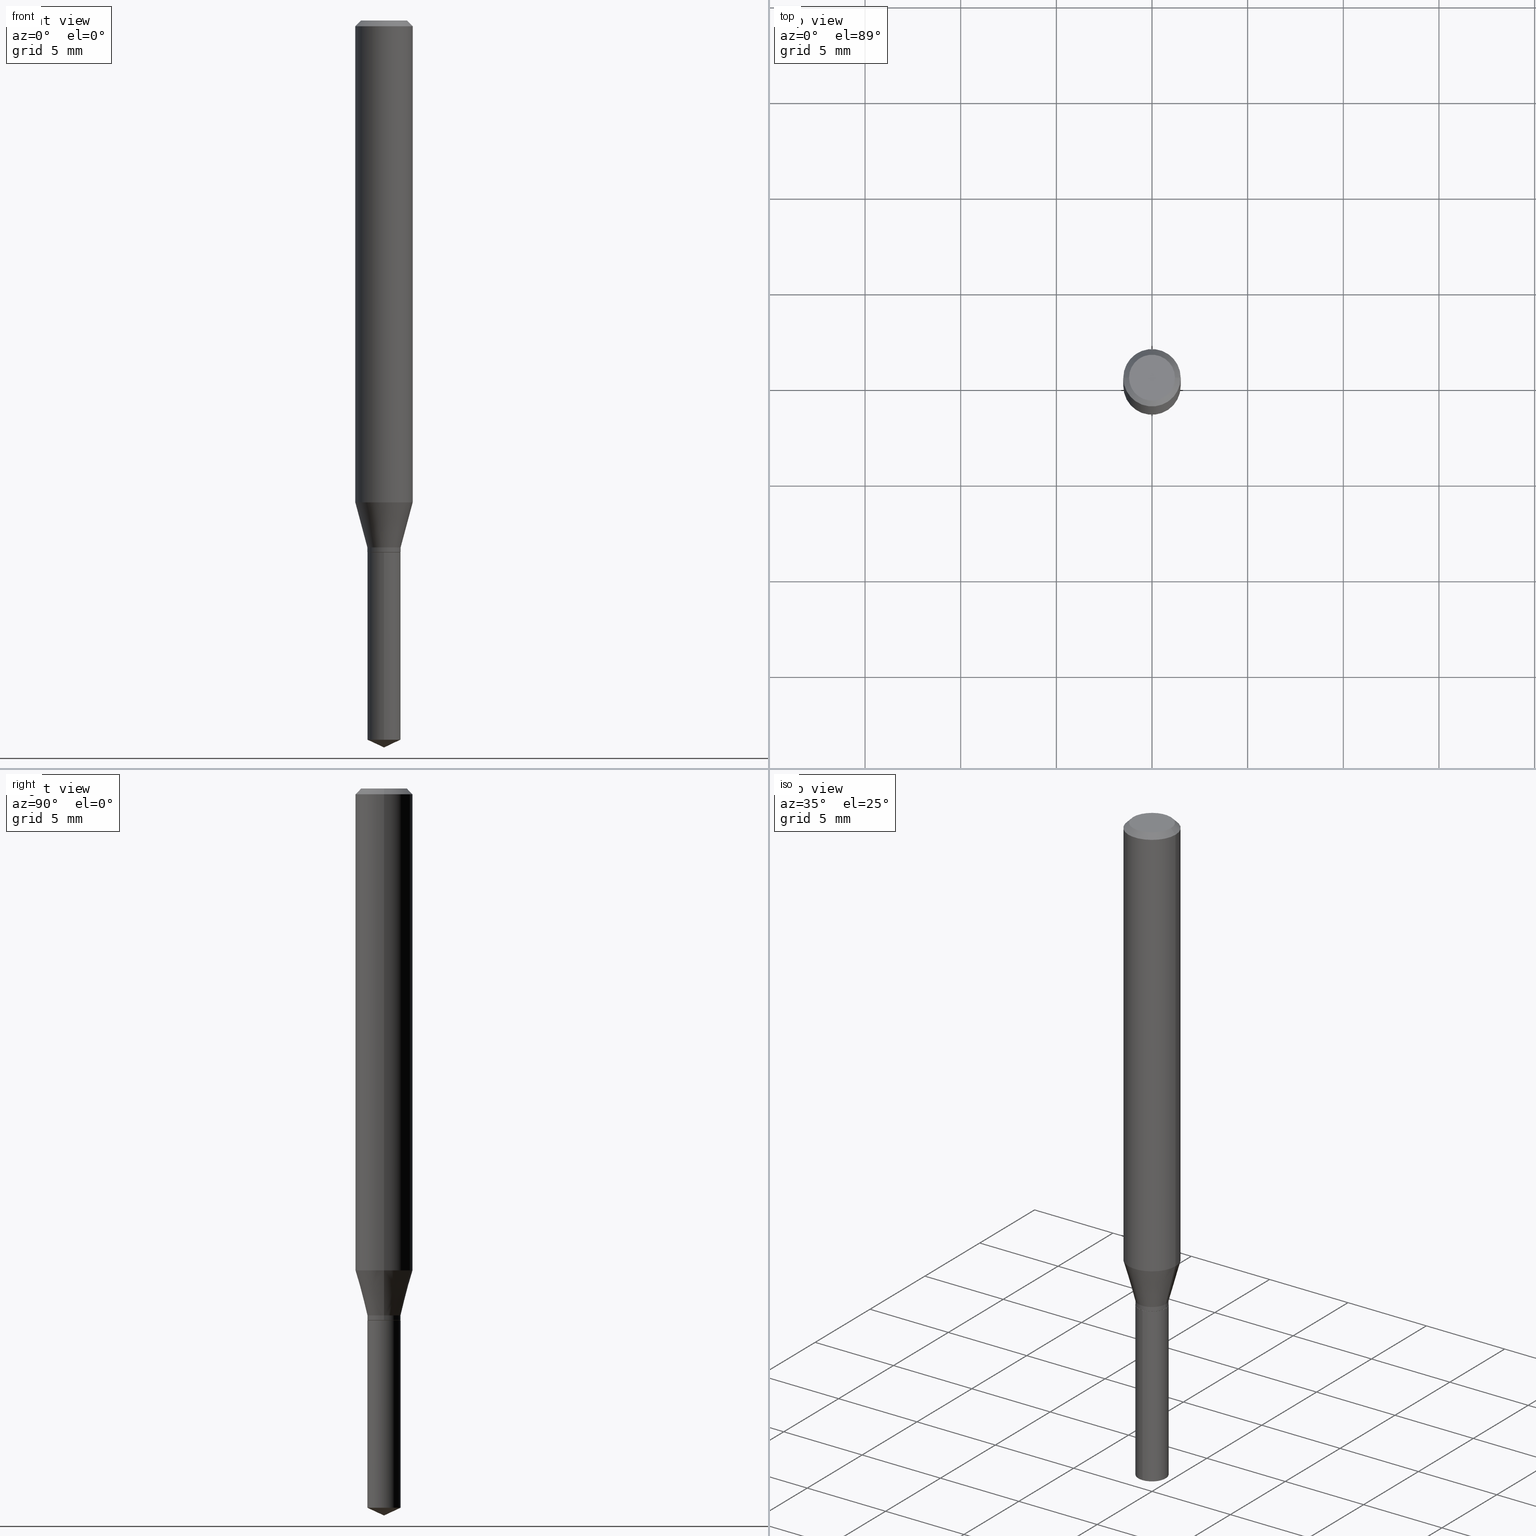
[diagram: canonical four-view strip — front | top / right | iso, engineering-drawing reading convention]
A machine part, canonical four-view strip (front | top / right | iso — engineering-drawing reading convention). The complete STEP part file that produces these views, byte-faithful:
ISO-10303-21;
HEADER;
FILE_DESCRIPTION (( 'STEP AP203' ),
    '1' );
FILE_NAME ('07913.STEP',
    '2024-04-24T06:02:47',
    ( '' ),
    ( '' ),
    'SwSTEP 2.0',
    'SolidWorks 2023',
    '' );
FILE_SCHEMA (( 'CONFIG_CONTROL_DESIGN' ));
ENDSEC;

DATA;
#1 =( CONVERSION_BASED_UNIT ( 'INCH', #271 ) LENGTH_UNIT ( ) NAMED_UNIT ( #392 ) );
#2 = EDGE_CURVE ( 'NONE', #400, #277, #22, .T. ) ;
#3 = LOCAL_TIME ( 2, 2, 47.00000000000000000, #192 ) ;
#4 = ORIENTED_EDGE ( 'NONE', *, *, #457, .T. ) ;
#5 = DIRECTION ( 'NONE',  ( 2.445468806185136597E-29, -3.491481338843145583E-15, -1.000000000000000000 ) ) ;
#6 = CARTESIAN_POINT ( 'NONE',  ( 2.676565608369631794E-29, -3.821426325363822773E-15, -1.094499999999999806 ) ) ;
#7 = CARTESIAN_POINT ( 'NONE',  ( -2.391664717107278944E-16, -0.03425000000000382600, -1.094499999999999806 ) ) ;
#8 = ORIENTED_EDGE ( 'NONE', *, *, #316, .T. ) ;
#9 = ORIENTED_EDGE ( 'NONE', *, *, #140, .T. ) ;
#10 = VECTOR ( 'NONE', #132, 39.37007874015748143 ) ;
#11 = ORIENTED_EDGE ( 'NONE', *, *, #416, .T. ) ;
#12 = FACE_OUTER_BOUND ( 'NONE', #435, .T. ) ;
#13 = ORIENTED_EDGE ( 'NONE', *, *, #153, .F. ) ;
#14 = EDGE_CURVE ( 'NONE', #263, #112, #191, .T. ) ;
#15 = DIRECTION ( 'NONE',  ( 1.000000000000000000, -6.982962677686266711E-15, 4.876176775795935793E-29 ) ) ;
#16 = AXIS2_PLACEMENT_3D ( 'NONE', #234, #5, #322 ) ;
#17 = DIRECTION ( 'NONE',  ( 0.7071067811864267805, -2.468850131080992517E-15, 0.7071067811866682540 ) ) ;
#18 = PERSON ( 'UNSPECIFIED', 'UNSPECIFIED', 'UNSPECIFIED', ('UNSPECIFIED'), ('UNSPECIFIED'), ('UNSPECIFIED') ) ;
#19 = CARTESIAN_POINT ( 'NONE',  ( 2.675342873966538993E-29, -3.819680584694400481E-15, -1.093999999999999861 ) ) ;
#20 = DIRECTION ( 'NONE',  ( -6.982962677686265922E-15, -1.000000000000000000, 3.988099260823741568E-15 ) ) ;
#21 = CARTESIAN_POINT ( 'NONE',  ( -0.03375000000000000222, -3.578968924870678138E-15, -1.094500000000000028 ) ) ;
#22 = CIRCLE ( 'NONE', #144, 0.05904999999999999832 ) ;
#23 = CARTESIAN_POINT ( 'NONE',  ( 3.619609750548734277E-29, -5.167841874605765612E-15, -1.480128962708191276 ) ) ;
#24 = ORIENTED_EDGE ( 'NONE', *, *, #314, .F. ) ;
#25 = FACE_OUTER_BOUND ( 'NONE', #319, .T. ) ;
#26 = DATE_AND_TIME ( #476, #273 ) ;
#27 = DIRECTION ( 'NONE',  ( 2.438088387897960049E-29, -3.491481338843145188E-15, -1.000000000000000000 ) ) ;
#28 = CONICAL_SURFACE ( 'NONE', #172, 0.03425000000000000266, 0.2617993877991497964 ) ;
#29 = APPROVAL_PERSON_ORGANIZATION ( #293, #308, #336 ) ;
#30 = ORIENTED_EDGE ( 'NONE', *, *, #170, .T. ) ;
#31 = ORGANIZATION ( 'UNSPECIFIED', 'UNSPECIFIED', '' ) ;
#32 = FACE_OUTER_BOUND ( 'NONE', #155, .T. ) ;
#33 = CYLINDRICAL_SURFACE ( 'NONE', #422, 0.03425000000000000266 ) ;
#34 = EDGE_LOOP ( 'NONE', ( #4, #306, #50, #196 ) ) ;
#35 = ADVANCED_FACE ( 'NONE', ( #12 ), #463, .T. ) ;
#36 = LINE ( 'NONE', #7, #339 ) ;
#37 = EDGE_LOOP ( 'NONE', ( #387, #283, #163, #473 ) ) ;
#38 = DIRECTION ( 'NONE',  ( -2.445468806185136597E-29, 3.491481338843145583E-15, 1.000000000000000000 ) ) ;
#39 = ORIENTED_EDGE ( 'NONE', *, *, #153, .T. ) ;
#40 = PERSON_AND_ORGANIZATION ( #18, #31 ) ;
#41 = AXIS2_PLACEMENT_3D ( 'NONE', #97, #475, #411 ) ;
#42 = ORIENTED_EDGE ( 'NONE', *, *, #334, .F. ) ;
#43 = APPROVAL_PERSON_ORGANIZATION ( #67, #231, #379 ) ;
#44 = CC_DESIGN_SECURITY_CLASSIFICATION ( #137, ( #310 ) ) ;
#45 = DIRECTION ( 'NONE',  ( -6.982962677686265922E-15, -1.000000000000000000, 3.988099260823741568E-15 ) ) ;
#46 = ORIENTED_EDGE ( 'NONE', *, *, #330, .T. ) ;
#47 = APPROVAL ( #312, 'UNSPECIFIED' ) ;
#48 = ORIENTED_EDGE ( 'NONE', *, *, #481, .F. ) ;
#49 = DIRECTION ( 'NONE',  ( -2.445470214571802396E-29, 3.491479321953280158E-15, 1.000000000000000000 ) ) ;
#50 = ORIENTED_EDGE ( 'NONE', *, *, #70, .F. ) ;
#51 = CALENDAR_DATE ( 2024, 24, 4 ) ;
#52 = CARTESIAN_POINT ( 'NONE',  ( 0.03425000000000000266, -4.024630539284492888E-15, -1.084199999999999831 ) ) ;
#53 = CIRCLE ( 'NONE', #358, 0.03425000000000000266 ) ;
#54 = AXIS2_PLACEMENT_3D ( 'NONE', #221, #135, #45 ) ;
#55 = DIRECTION ( 'NONE',  ( -2.445470214571802116E-29, 3.491479321953280158E-15, 1.000000000000000000 ) ) ;
#56 = CC_DESIGN_APPROVAL ( #308, ( #137 ) ) ;
#57 = PERSON_AND_ORGANIZATION_ROLE ( 'design_supplier' ) ;
#58 = CARTESIAN_POINT ( 'NONE',  ( 2.651377279665924456E-29, -3.785464067573738222E-15, -1.084199999999999831 ) ) ;
#59 = CARTESIAN_POINT ( 'NONE',  ( -2.391664717107278944E-16, -0.03425000000000382600, -1.094499999999999806 ) ) ;
#60 = CARTESIAN_POINT ( 'NONE',  ( 2.676565608369632355E-29, -3.821426325363822773E-15, -1.094500000000000028 ) ) ;
#61 = AXIS2_PLACEMENT_3D ( 'NONE', #421, #348, #383 ) ;
#62 = APPROVAL_DATE_TIME ( #415, #231 ) ;
#63 = PERSON_AND_ORGANIZATION_ROLE ( 'design_owner' ) ;
#64 = CC_DESIGN_DATE_AND_TIME_ASSIGNMENT ( #26, #179, ( #274 ) ) ;
#65 = ORIENTED_EDGE ( 'NONE', *, *, #334, .T. ) ;
#66 = DIRECTION ( 'NONE',  ( 1.000000000000000000, -6.982962677686268288E-15, 0.000000000000000000 ) ) ;
#67 = PERSON_AND_ORGANIZATION ( #18, #31 ) ;
#68 = MANIFOLD_SOLID_BREP ( 'Body-Move/Copy2[1]', #300 ) ;
#69 = PLANE ( 'NONE',  #124 ) ;
#70 = EDGE_CURVE ( 'NONE', #277, #400, #113, .T. ) ;
#71 = PLANE ( 'NONE',  #428 ) ;
#72 =( GEOMETRIC_REPRESENTATION_CONTEXT ( 3 ) GLOBAL_UNCERTAINTY_ASSIGNED_CONTEXT ( ( #253 ) ) GLOBAL_UNIT_ASSIGNED_CONTEXT ( ( #1, #384, #320 ) ) REPRESENTATION_CONTEXT ( 'NONE', 'WORKASPACE' ) );
#73 = CARTESIAN_POINT ( 'NONE',  ( 2.888098660104664204E-31, -4.123439461173780263E-17, -0.01181000000000007218 ) ) ;
#74 = DIRECTION ( 'NONE',  ( 1.000000000000000000, -6.982962677686266711E-15, 0.000000000000000000 ) ) ;
#75 = PLANE ( 'NONE',  #353 ) ;
#76 = VERTEX_POINT ( 'NONE', #354 ) ;
#77 = VERTEX_POINT ( 'NONE', #459 ) ;
#78 = ORIENTED_EDGE ( 'NONE', *, *, #198, .F. ) ;
#79 = ORIENTED_EDGE ( 'NONE', *, *, #457, .F. ) ;
#80 = ORIENTED_EDGE ( 'NONE', *, *, #419, .F. ) ;
#81 = ADVANCED_FACE ( 'NONE', ( #430 ), #236, .T. ) ;
#82 = ADVANCED_FACE ( 'NONE', ( #356 ), #33, .T. ) ;
#83 = ORIENTED_EDGE ( 'NONE', *, *, #258, .F. ) ;
#84 = CIRCLE ( 'NONE', #465, 0.03425000000000000266 ) ;
#85 = FACE_OUTER_BOUND ( 'NONE', #34, .T. ) ;
#86 = ORIENTED_EDGE ( 'NONE', *, *, #324, .T. ) ;
#87 = PERSON_AND_ORGANIZATION ( #18, #31 ) ;
#88 = APPROVAL_STATUS ( 'not_yet_approved' ) ;
#89 = DIRECTION ( 'NONE',  ( 0.7071067811865453523, -7.319954787623248157E-15, -0.7071067811865496822 ) ) ;
#90 = CARTESIAN_POINT ( 'NONE',  ( 2.433608869978610553E-16, 0.03424999999999618627, -1.094500000000000028 ) ) ;
#91 = CYLINDRICAL_SURFACE ( 'NONE', #409, 0.05905000000000006077 ) ;
#92 = AXIS2_PLACEMENT_3D ( 'NONE', #212, #371, #20 ) ;
#93 = DIRECTION ( 'NONE',  ( -2.445468806185136877E-29, 3.491481338843145188E-15, 1.000000000000000000 ) ) ;
#94 = ORIENTED_EDGE ( 'NONE', *, *, #170, .F. ) ;
#95 = EDGE_LOOP ( 'NONE', ( #478, #116, #80, #42 ) ) ;
#96 = CARTESIAN_POINT ( 'NONE',  ( -0.03425000000000000266, 2.433608869978343326E-16, -1.684735268412305473E-30 ) ) ;
#97 = CARTESIAN_POINT ( 'NONE',  ( 0.000000000000000000, 0.000000000000000000, 0.000000000000000000 ) ) ;
#98 = DIRECTION ( 'NONE',  ( 2.445470214571801836E-29, -3.491479321953280158E-15, -1.000000000000000000 ) ) ;
#99 = EDGE_CURVE ( 'NONE', #469, #115, #304, .T. ) ;
#100 = ORIENTED_EDGE ( 'NONE', *, *, #386, .T. ) ;
#101 = CARTESIAN_POINT ( 'NONE',  ( 3.658664905062460986E-29, -5.223606628546217219E-15, -1.496099999999999985 ) ) ;
#102 = DIRECTION ( 'NONE',  ( -2.445468806185136597E-29, 3.491481338843145583E-15, 1.000000000000000000 ) ) ;
#103 = VECTOR ( 'NONE', #178, 39.37007874015748143 ) ;
#104 = CARTESIAN_POINT ( 'NONE',  ( 2.676565608369631794E-29, -3.821426325363822773E-15, -1.094499999999999806 ) ) ;
#105 = CARTESIAN_POINT ( 'NONE',  ( 0.05905000000000006077, -4.123439461173744764E-16, 2.879382386107503023E-30 ) ) ;
#106 = CONICAL_SURFACE ( 'NONE', #398, 84.42940631927420725, 1.134464013796315340 ) ;
#107 = LOCAL_TIME ( 2, 2, 47.00000000000000000, #224 ) ;
#108 = LOCAL_TIME ( 2, 2, 47.00000000000000000, #217 ) ;
#109 = DATE_AND_TIME ( #460, #3 ) ;
#110 = CARTESIAN_POINT ( 'NONE',  ( 2.888098660104664204E-31, -4.123439461173780263E-17, -0.01181000000000007218 ) ) ;
#111 = CARTESIAN_POINT ( 'NONE',  ( 2.676565608369632355E-29, -3.821426325363822773E-15, -1.094500000000000028 ) ) ;
#112 = VERTEX_POINT ( 'NONE', #166 ) ;
#113 = CIRCLE ( 'NONE', #122, 0.05904999999999999832 ) ;
#114 = CONICAL_SURFACE ( 'NONE', #437, 0.05904999999999999832, 0.7853981633974452814 ) ;
#115 = VERTEX_POINT ( 'NONE', #449 ) ;
#116 = ORIENTED_EDGE ( 'NONE', *, *, #453, .T. ) ;
#117 = ORIENTED_EDGE ( 'NONE', *, *, #394, .T. ) ;
#118 = CC_DESIGN_PERSON_AND_ORGANIZATION_ASSIGNMENT ( #157, #63, ( #442 ) ) ;
#119 = DIRECTION ( 'NONE',  ( 1.000000000000000000, -6.982962677686266711E-15, 0.000000000000000000 ) ) ;
#120 = ORIENTED_EDGE ( 'NONE', *, *, #14, .T. ) ;
#121 = DIRECTION ( 'NONE',  ( 1.000000000000000000, -6.982962677686266711E-15, 4.876176775795936353E-29 ) ) ;
#122 = AXIS2_PLACEMENT_3D ( 'NONE', #110, #424, #74 ) ;
#123 = ORIENTED_EDGE ( 'NONE', *, *, #243, .T. ) ;
#124 = AXIS2_PLACEMENT_3D ( 'NONE', #225, #27, #275 ) ;
#125 = CALENDAR_DATE ( 2024, 24, 4 ) ;
#126 = ADVANCED_FACE ( 'NONE', ( #127 ), #190, .T. ) ;
#127 = FACE_OUTER_BOUND ( 'NONE', #305, .T. ) ;
#128 = CARTESIAN_POINT ( 'NONE',  ( -0.05905000000000006077, 4.195754854663395916E-16, -2.904631170795524694E-30 ) ) ;
#129 = LINE ( 'NONE', #96, #377 ) ;
#130 = DIRECTION ( 'NONE',  ( -2.445468806185136597E-29, 3.491481338843145583E-15, 1.000000000000000000 ) ) ;
#131 = CYLINDRICAL_SURFACE ( 'NONE', #291, 0.03425000000000000266 ) ;
#132 = DIRECTION ( 'NONE',  ( -0.2588190451025211281, 5.211531920934548675E-15, 0.9659258262890682012 ) ) ;
#133 = VERTEX_POINT ( 'NONE', #59 ) ;
#134 = LINE ( 'NONE', #420, #10 ) ;
#135 = DIRECTION ( 'NONE',  ( -2.445470214571802116E-29, 3.491479321953280158E-15, 1.000000000000000000 ) ) ;
#136 = CIRCLE ( 'NONE', #279, 0.04724000000000000421 ) ;
#137 = SECURITY_CLASSIFICATION ( '', '', #194 ) ;
#138 = ADVANCED_FACE ( 'NONE', ( #211 ), #106, .T. ) ;
#139 = CARTESIAN_POINT ( 'NONE',  ( 3.619609750548734277E-29, -5.167841874605765612E-15, -1.480128962708191276 ) ) ;
#140 = EDGE_CURVE ( 'NONE', #175, #469, #151, .T. ) ;
#141 = DIRECTION ( 'NONE',  ( 0.000000000000000000, 0.000000000000000000, 1.000000000000000000 ) ) ;
#142 = DIRECTION ( 'NONE',  ( -2.445468806185136597E-29, 3.491481338843145583E-15, 1.000000000000000000 ) ) ;
#143 =( LENGTH_UNIT ( ) NAMED_UNIT ( * ) SI_UNIT ( $, .METRE. ) );
#144 = AXIS2_PLACEMENT_3D ( 'NONE', #321, #329, #119 ) ;
#145 = VECTOR ( 'NONE', #193, 39.37007874015748854 ) ;
#146 = EDGE_CURVE ( 'NONE', #115, #77, #376, .T. ) ;
#147 = ORIENTED_EDGE ( 'NONE', *, *, #14, .F. ) ;
#148 = EDGE_LOOP ( 'NONE', ( #401, #395, #120, #373 ) ) ;
#149 = DIRECTION ( 'NONE',  ( -2.445470214571802396E-29, 3.491479321953280158E-15, 1.000000000000000000 ) ) ;
#150 = ORIENTED_EDGE ( 'NONE', *, *, #441, .F. ) ;
#151 = CIRCLE ( 'NONE', #333, 0.03375000000000000222 ) ;
#152 = CIRCLE ( 'NONE', #317, 0.03425000000000000266 ) ;
#153 = EDGE_CURVE ( 'NONE', #469, #175, #406, .T. ) ;
#154 = CARTESIAN_POINT ( 'NONE',  ( -0.04724000000000000421, 3.504923541997677355E-16, -3.380025165670481712E-19 ) ) ;
#155 = EDGE_LOOP ( 'NONE', ( #427, #327, #480, #468 ) ) ;
#156 = PERSON_AND_ORGANIZATION_ROLE ( 'classification_officer' ) ;
#157 = PERSON_AND_ORGANIZATION ( #18, #31 ) ;
#158 = FACE_OUTER_BOUND ( 'NONE', #464, .T. ) ;
#159 = DIRECTION ( 'NONE',  ( -6.982962677686266711E-15, -1.000000000000000000, 3.520397390770459392E-15 ) ) ;
#160 = DIRECTION ( 'NONE',  ( -2.445470214571802116E-29, 3.491479321953280158E-15, 1.000000000000000000 ) ) ;
#161 = ORIENTED_EDGE ( 'NONE', *, *, #198, .T. ) ;
#162 = AXIS2_PLACEMENT_3D ( 'NONE', #335, #130, #15 ) ;
#163 = ORIENTED_EDGE ( 'NONE', *, *, #467, .F. ) ;
#164 = CC_DESIGN_APPROVAL ( #231, ( #310 ) ) ;
#165 = PRODUCT_RELATED_PRODUCT_CATEGORY ( 'detail', '', ( #442 ) ) ;
#166 = CARTESIAN_POINT ( 'NONE',  ( 0.05905000000000011628, -3.874654447085129715E-15, -0.9916451399722914228 ) ) ;
#167 = DIRECTION ( 'NONE',  ( 1.000000000000000000, -6.982962677686268288E-15, 0.000000000000000000 ) ) ;
#168 = LINE ( 'NONE', #261, #272 ) ;
#169 = ADVANCED_FACE ( 'NONE', ( #85 ), #440, .T. ) ;
#170 = EDGE_CURVE ( 'NONE', #76, #360, #136, .T. ) ;
#171 = CARTESIAN_POINT ( 'NONE',  ( -0.05905000000000011628, -3.042735015501414908E-15, -0.9916451399722914228 ) ) ;
#172 = AXIS2_PLACEMENT_3D ( 'NONE', #342, #38, #458 ) ;
#173 = DATE_AND_TIME ( #51, #108 ) ;
#174 = DIRECTION ( 'NONE',  ( -2.445468806185136597E-29, 3.491481338843145583E-15, 1.000000000000000000 ) ) ;
#175 = VERTEX_POINT ( 'NONE', #21 ) ;
#176 = DIRECTION ( 'NONE',  ( -2.445468806185136597E-29, 3.491481338843145583E-15, 1.000000000000000000 ) ) ;
#177 = DIRECTION ( 'NONE',  ( 6.982962677686265922E-15, 1.000000000000000000, -3.491479321953280158E-15 ) ) ;
#178 = DIRECTION ( 'NONE',  ( -0.7071067811864267805, 7.493145998869918709E-15, 0.7071067811866682540 ) ) ;
#179 = DATE_TIME_ROLE ( 'creation_date' ) ;
#180 = VECTOR ( 'NONE', #49, 39.37007874015748143 ) ;
#181 = VECTOR ( 'NONE', #228, 39.37007874015748143 ) ;
#182 = FACE_OUTER_BOUND ( 'NONE', #199, .T. ) ;
#183 = AXIS2_PLACEMENT_3D ( 'NONE', #58, #176, #260 ) ;
#184 = DIRECTION ( 'NONE',  ( -1.000000000000000000, 6.982962677686266711E-15, 0.000000000000000000 ) ) ;
#185 = COORDINATED_UNIVERSAL_TIME_OFFSET ( 5, 0, .BEHIND. ) ;
#186 = LINE ( 'NONE', #105, #181 ) ;
#187 = CARTESIAN_POINT ( 'NONE',  ( 3.658668015054778287E-29, -5.223602213574301462E-15, -1.496099999999999985 ) ) ;
#188 = LINE ( 'NONE', #216, #103 ) ;
#189 = FACE_OUTER_BOUND ( 'NONE', #244, .T. ) ;
#190 = CONICAL_SURFACE ( 'NONE', #381, 0.03375000000000000222, 0.7853981633972775267 ) ;
#191 = LINE ( 'NONE', #205, #436 ) ;
#192 = COORDINATED_UNIVERSAL_TIME_OFFSET ( 5, 0, .BEHIND. ) ;
#193 = DIRECTION ( 'NONE',  ( 6.439704144417027987E-15, 0.9063077870366519351, 0.4226182617406953335 ) ) ;
#194 = SECURITY_CLASSIFICATION_LEVEL ( 'unclassified' ) ;
#195 = ORIENTED_EDGE ( 'NONE', *, *, #70, .T. ) ;
#196 = ORIENTED_EDGE ( 'NONE', *, *, #324, .F. ) ;
#197 = DATE_AND_TIME ( #125, #483 ) ;
#198 = EDGE_CURVE ( 'NONE', #203, #278, #53, .T. ) ;
#199 = EDGE_LOOP ( 'NONE', ( #323, #8, #79, #147 ) ) ;
#200 = DIRECTION ( 'NONE',  ( 1.000000000000000000, -6.982962677686265922E-15, 4.876176775795935793E-29 ) ) ;
#201 = ORIENTED_EDGE ( 'NONE', *, *, #447, .F. ) ;
#202 = APPROVAL_PERSON_ORGANIZATION ( #40, #47, #471 ) ;
#203 = VERTEX_POINT ( 'NONE', #402 ) ;
#204 = CARTESIAN_POINT ( 'NONE',  ( 2.676565608369631794E-29, -3.821426325363822773E-15, -1.094499999999999806 ) ) ;
#205 = CARTESIAN_POINT ( 'NONE',  ( 0.03425000000000000266, -4.024630539284492888E-15, -1.084199999999999831 ) ) ;
#206 = VERTEX_POINT ( 'NONE', #299 ) ;
#207 = DIRECTION ( 'NONE',  ( 1.000000000000000000, -6.982962677686266711E-15, 4.876185090822587894E-29 ) ) ;
#208 = EDGE_CURVE ( 'NONE', #404, #400, #445, .T. ) ;
#209 = APPROVAL_DATE_TIME ( #173, #308 ) ;
#210 = DIRECTION ( 'NONE',  ( -2.445470214571802116E-29, 3.491479321953280158E-15, 1.000000000000000000 ) ) ;
#211 = FACE_OUTER_BOUND ( 'NONE', #288, .T. ) ;
#212 = CARTESIAN_POINT ( 'NONE',  ( 2.676565608369631794E-29, -3.821426325363822773E-15, -1.094499999999999806 ) ) ;
#213 = EDGE_CURVE ( 'NONE', #203, #248, #363, .T. ) ;
#214 = DIRECTION ( 'NONE',  ( -6.982962677686266711E-15, -1.000000000000000000, 3.520397390770459392E-15 ) ) ;
#215 = ADVANCED_FACE ( 'NONE', ( #254 ), #259, .T. ) ;
#216 = CARTESIAN_POINT ( 'NONE',  ( -0.03375000000000000222, -3.581618152044789339E-15, -1.094500000000000028 ) ) ;
#217 = COORDINATED_UNIVERSAL_TIME_OFFSET ( 5, 0, .BEHIND. ) ;
#218 = DIRECTION ( 'NONE',  ( -2.445468806185136597E-29, 3.491481338843145583E-15, 1.000000000000000000 ) ) ;
#219 = EDGE_LOOP ( 'NONE', ( #439, #9, #378, #432 ) ) ;
#220 = AXIS2_PLACEMENT_3D ( 'NONE', #287, #434, #159 ) ;
#221 = CARTESIAN_POINT ( 'NONE',  ( 2.676565608369631794E-29, -3.821426325363822773E-15, -1.094499999999999806 ) ) ;
#222 = APPROVAL_STATUS ( 'not_yet_approved' ) ;
#223 = DIRECTION ( 'NONE',  ( 1.000000000000000000, -6.982962677686266711E-15, 0.000000000000000000 ) ) ;
#224 = COORDINATED_UNIVERSAL_TIME_OFFSET ( 5, 0, .BEHIND. ) ;
#225 = CARTESIAN_POINT ( 'NONE',  ( 4.132873053354867254E-48, -5.900647395337818946E-34, -1.690012582823346072E-19 ) ) ;
#226 = CLOSED_SHELL ( 'NONE', ( #126, #487, #169, #289, #215, #268, #349, #431, #355, #282, #368, #81 ) ) ;
#227 = AXIS2_PLACEMENT_3D ( 'NONE', #490, #141, #315 ) ;
#228 = DIRECTION ( 'NONE',  ( -2.445468806185136877E-29, 3.491481338843145188E-15, 1.000000000000000000 ) ) ;
#229 = APPLICATION_PROTOCOL_DEFINITION ( 'international standard', 'config_control_design', 1994, #241 ) ;
#230 = CARTESIAN_POINT ( 'NONE',  ( 0.03425000000000000266, -2.391664717107546664E-16, 1.670090545710108303E-30 ) ) ;
#231 = APPROVAL ( #222, 'UNSPECIFIED' ) ;
#232 = DIRECTION ( 'NONE',  ( 2.445468806185136597E-29, -3.491481338843145583E-15, -1.000000000000000000 ) ) ;
#233 = ADVANCED_BREP_SHAPE_REPRESENTATION ( '07913', ( #68, #412, #227 ), #72 ) ;
#234 = CARTESIAN_POINT ( 'NONE',  ( 2.888098660104664204E-31, -4.123439461173780263E-17, -0.01181000000000007218 ) ) ;
#235 = ORIENTED_EDGE ( 'NONE', *, *, #447, .T. ) ;
#236 = CONICAL_SURFACE ( 'NONE', #366, 0.03375000000000000222, 0.7853981633972775267 ) ;
#237 = DIRECTION ( 'NONE',  ( -2.445468806185136597E-29, 3.491481338843145583E-15, 1.000000000000000000 ) ) ;
#238 = AXIS2_PLACEMENT_3D ( 'NONE', #264, #102, #223 ) ;
#239 = ORIENTED_EDGE ( 'NONE', *, *, #99, .F. ) ;
#240 = DIRECTION ( 'NONE',  ( -2.438088387897960049E-29, 3.491481338843145188E-15, 1.000000000000000000 ) ) ;
#241 = APPLICATION_CONTEXT ( 'configuration controlled 3d designs of mechanical parts and assemblies' ) ;
#242 = EDGE_LOOP ( 'NONE', ( #46, #30 ) ) ;
#243 = EDGE_CURVE ( 'NONE', #76, #277, #168, .T. ) ;
#244 = EDGE_LOOP ( 'NONE', ( #13, #340 ) ) ;
#245 = ORIENTED_EDGE ( 'NONE', *, *, #2, .F. ) ;
#246 = CARTESIAN_POINT ( 'NONE',  ( -0.05904999999999999832, -1.332196962323405783E-15, -0.01181000000000007218 ) ) ;
#247 = PERSON_AND_ORGANIZATION_ROLE ( 'creator' ) ;
#248 = VERTEX_POINT ( 'NONE', #414 ) ;
#249 = VECTOR ( 'NONE', #298, 39.37007874015748143 ) ;
#250 = DIRECTION ( 'NONE',  ( -2.445468806185136597E-29, 3.491481338843145583E-15, 1.000000000000000000 ) ) ;
#251 = CC_DESIGN_PERSON_AND_ORGANIZATION_ASSIGNMENT ( #270, #57, ( #310 ) ) ;
#252 = LINE ( 'NONE', #405, #455 ) ;
#253 = UNCERTAINTY_MEASURE_WITH_UNIT (LENGTH_MEASURE( 1.000000000000000082E-05 ), #1, 'distance_accuracy_value', 'NONE');
#254 = FACE_OUTER_BOUND ( 'NONE', #95, .T. ) ;
#255 = VECTOR ( 'NONE', #17, 39.37007874015748143 ) ;
#256 = VECTOR ( 'NONE', #267, 39.37007874015748143 ) ;
#257 = CARTESIAN_POINT ( 'NONE',  ( 2.425037256607332168E-29, -3.462310500967754795E-15, -0.9916451399722914228 ) ) ;
#258 = EDGE_CURVE ( 'NONE', #360, #400, #252, .T. ) ;
#259 = CYLINDRICAL_SURFACE ( 'NONE', #41, 0.03425000000000000266 ) ;
#260 = DIRECTION ( 'NONE',  ( 1.000000000000000000, -6.982962677686268288E-15, 0.000000000000000000 ) ) ;
#261 = CARTESIAN_POINT ( 'NONE',  ( 0.05904999999999999832, -4.463468013801466955E-16, -0.01181000000000007218 ) ) ;
#262 = CALENDAR_DATE ( 2024, 24, 4 ) ;
#263 = VERTEX_POINT ( 'NONE', #52 ) ;
#264 = CARTESIAN_POINT ( 'NONE',  ( 2.425037256607332168E-29, -3.462310500967754795E-15, -0.9916451399722914228 ) ) ;
#265 = DIRECTION ( 'NONE',  ( -2.445468806185136597E-29, 3.491481338843145583E-15, 1.000000000000000000 ) ) ;
#266 = CIRCLE ( 'NONE', #183, 0.03425000000000000266 ) ;
#267 = DIRECTION ( 'NONE',  ( -2.445468806185136877E-29, 3.491481338843145188E-15, 1.000000000000000000 ) ) ;
#268 = ADVANCED_FACE ( 'NONE', ( #482 ), #131, .T. ) ;
#269 = DIRECTION ( 'NONE',  ( -6.982962677686265922E-15, -1.000000000000000000, 0.000000000000000000 ) ) ;
#270 = PERSON_AND_ORGANIZATION ( #18, #31 ) ;
#271 = LENGTH_MEASURE_WITH_UNIT ( LENGTH_MEASURE( 0.02539999999999999897 ), #143 );
#272 = VECTOR ( 'NONE', #89, 39.37007874015748143 ) ;
#273 = LOCAL_TIME ( 2, 2, 47.00000000000000000, #185 ) ;
#274 = PRODUCT_DEFINITION ( 'UNKNOWN', '', #310, #362 ) ;
#275 = DIRECTION ( 'NONE',  ( -1.000000000000000000, 6.982962677686265922E-15, -4.876176775795935793E-29 ) ) ;
#276 = DATE_TIME_ROLE ( 'classification_date' ) ;
#277 = VERTEX_POINT ( 'NONE', #290 ) ;
#278 = VERTEX_POINT ( 'NONE', #451 ) ;
#279 = AXIS2_PLACEMENT_3D ( 'NONE', #477, #250, #207 ) ;
#280 = EDGE_LOOP ( 'NONE', ( #94, #123, #195, #83 ) ) ;
#281 = CIRCLE ( 'NONE', #382, 0.03425000000000000266 ) ;
#282 = ADVANCED_FACE ( 'NONE', ( #311 ), #69, .F. ) ;
#283 = ORIENTED_EDGE ( 'NONE', *, *, #213, .T. ) ;
#284 = ORIENTED_EDGE ( 'NONE', *, *, #453, .F. ) ;
#285 = VERTEX_POINT ( 'NONE', #313 ) ;
#286 = APPROVAL_DATE_TIME ( #197, #47 ) ;
#287 = CARTESIAN_POINT ( 'NONE',  ( -9.261968845786000133E-28, 1.322362114038720264E-13, 37.87397874015748300 ) ) ;
#288 = EDGE_LOOP ( 'NONE', ( #48, #11, #78 ) ) ;
#289 = ADVANCED_FACE ( 'NONE', ( #182 ), #466, .T. ) ;
#290 = CARTESIAN_POINT ( 'NONE',  ( 0.05904999999999999832, -4.535783407291118600E-16, -0.01181000000000007218 ) ) ;
#291 = AXIS2_PLACEMENT_3D ( 'NONE', #375, #174, #121 ) ;
#292 = ORIENTED_EDGE ( 'NONE', *, *, #481, .T. ) ;
#293 = PERSON_AND_ORGANIZATION ( #18, #31 ) ;
#294 = DIRECTION ( 'NONE',  ( -2.445468806185136597E-29, 3.491481338843145583E-15, 1.000000000000000000 ) ) ;
#295 = COORDINATED_UNIVERSAL_TIME_OFFSET ( 5, 0, .BEHIND. ) ;
#296 = DIRECTION ( 'NONE',  ( 1.000000000000000000, -6.982962677686268288E-15, 0.000000000000000000 ) ) ;
#297 = EDGE_CURVE ( 'NONE', #404, #112, #489, .T. ) ;
#298 = DIRECTION ( 'NONE',  ( -6.328713451373372534E-15, -0.9063077870366488265, 0.4226182617407016062 ) ) ;
#299 = CARTESIAN_POINT ( 'NONE',  ( -0.03425000000000000266, -3.559211439136235413E-15, -1.084199999999999831 ) ) ;
#300 = CLOSED_SHELL ( 'NONE', ( #82, #35, #138, #448, #303 ) ) ;
#301 = AXIS2_PLACEMENT_3D ( 'NONE', #257, #413, #410 ) ;
#302 = CARTESIAN_POINT ( 'NONE',  ( 2.651377279665924456E-29, -3.785464067573738222E-15, -1.084199999999999831 ) ) ;
#303 = ADVANCED_FACE ( 'NONE', ( #25 ), #71, .F. ) ;
#304 = LINE ( 'NONE', #364, #255 ) ;
#305 = EDGE_LOOP ( 'NONE', ( #39, #328, #417, #239 ) ) ;
#306 = ORIENTED_EDGE ( 'NONE', *, *, #208, .T. ) ;
#307 = DIRECTION ( 'NONE',  ( 1.000000000000000000, -6.982962677686266711E-15, 4.876185090822587894E-29 ) ) ;
#308 = APPROVAL ( #88, 'UNSPECIFIED' ) ;
#309 = AXIS2_PLACEMENT_3D ( 'NONE', #19, #218, #167 ) ;
#310 = PRODUCT_DEFINITION_FORMATION_WITH_SPECIFIED_SOURCE ( 'ANY', '', #442, .NOT_KNOWN. ) ;
#311 = FACE_OUTER_BOUND ( 'NONE', #242, .T. ) ;
#312 = APPROVAL_STATUS ( 'not_yet_approved' ) ;
#313 = CARTESIAN_POINT ( 'NONE',  ( 3.658667988020872822E-29, -5.223602213574301462E-15, -1.496099999999999985 ) ) ;
#314 = EDGE_CURVE ( 'NONE', #278, #203, #84, .T. ) ;
#315 = DIRECTION ( 'NONE',  ( 1.000000000000000000, 0.000000000000000000, 0.000000000000000000 ) ) ;
#316 = EDGE_CURVE ( 'NONE', #206, #404, #134, .T. ) ;
#317 = AXIS2_PLACEMENT_3D ( 'NONE', #302, #265, #66 ) ;
#318 = APPLICATION_CONTEXT ( 'configuration controlled 3d designs of mechanical parts and assemblies' ) ;
#319 = EDGE_LOOP ( 'NONE', ( #397, #235 ) ) ;
#320 =( NAMED_UNIT ( * ) SI_UNIT ( $, .STERADIAN. ) SOLID_ANGLE_UNIT ( ) );
#321 = CARTESIAN_POINT ( 'NONE',  ( 2.888098660104664204E-31, -4.123439461173780263E-17, -0.01181000000000007218 ) ) ;
#322 = DIRECTION ( 'NONE',  ( -1.000000000000000000, 6.982962677686266711E-15, 0.000000000000000000 ) ) ;
#323 = ORIENTED_EDGE ( 'NONE', *, *, #419, .T. ) ;
#324 = EDGE_CURVE ( 'NONE', #112, #277, #186, .T. ) ;
#325 = DIRECTION ( 'NONE',  ( -2.445468806185136597E-29, 3.491481338843145583E-15, 1.000000000000000000 ) ) ;
#326 = CIRCLE ( 'NONE', #301, 0.05905000000000011628 ) ;
#327 = ORIENTED_EDGE ( 'NONE', *, *, #330, .F. ) ;
#328 = ORIENTED_EDGE ( 'NONE', *, *, #403, .T. ) ;
#329 = DIRECTION ( 'NONE',  ( -2.445468806185136597E-29, 3.491481338843145583E-15, 1.000000000000000000 ) ) ;
#330 = EDGE_CURVE ( 'NONE', #360, #76, #452, .T. ) ;
#331 = DIRECTION ( 'NONE',  ( -2.445470214571802116E-29, 3.491479321953280158E-15, 1.000000000000000000 ) ) ;
#332 = DIRECTION ( 'NONE',  ( -6.982962677686265922E-15, -1.000000000000000000, 0.000000000000000000 ) ) ;
#333 = AXIS2_PLACEMENT_3D ( 'NONE', #443, #294, #370 ) ;
#334 = EDGE_CURVE ( 'NONE', #115, #263, #350, .T. ) ;
#335 = CARTESIAN_POINT ( 'NONE',  ( 0.000000000000000000, 0.000000000000000000, 0.000000000000000000 ) ) ;
#336 = APPROVAL_ROLE ( '' ) ;
#337 = CARTESIAN_POINT ( 'NONE',  ( 2.676565608369632355E-29, -3.821426325363822773E-15, -1.094500000000000028 ) ) ;
#338 = DIRECTION ( 'NONE',  ( -0.7071067811865453523, 2.468850131082234184E-15, -0.7071067811865496822 ) ) ;
#339 = VECTOR ( 'NONE', #149, 39.37007874015748143 ) ;
#340 = ORIENTED_EDGE ( 'NONE', *, *, #140, .F. ) ;
#341 = CARTESIAN_POINT ( 'NONE',  ( 0.03375000000000000222, -4.057101315735734433E-15, -1.094500000000000028 ) ) ;
#342 = CARTESIAN_POINT ( 'NONE',  ( 2.651377279665924456E-29, -3.785464067573738222E-15, -1.084199999999999831 ) ) ;
#343 = FACE_OUTER_BOUND ( 'NONE', #450, .T. ) ;
#344 = CC_DESIGN_PERSON_AND_ORGANIZATION_ASSIGNMENT ( #346, #380, ( #310 ) ) ;
#345 = CARTESIAN_POINT ( 'NONE',  ( 8.265746106709734507E-48, -1.180129479067563789E-33, -3.380025165646692144E-19 ) ) ;
#346 = PERSON_AND_ORGANIZATION ( #18, #31 ) ;
#347 = CIRCLE ( 'NONE', #92, 0.03425000000000000266 ) ;
#348 = DIRECTION ( 'NONE',  ( -2.445468806185136597E-29, 3.491481338843145583E-15, 1.000000000000000000 ) ) ;
#349 = ADVANCED_FACE ( 'NONE', ( #385 ), #28, .T. ) ;
#350 = LINE ( 'NONE', #230, #256 ) ;
#351 = APPLICATION_PROTOCOL_DEFINITION ( 'international standard', 'config_control_design', 1994, #318 ) ;
#352 = MECHANICAL_CONTEXT ( 'NONE', #241, 'mechanical' ) ;
#353 = AXIS2_PLACEMENT_3D ( 'NONE', #429, #240, #200 ) ;
#354 = CARTESIAN_POINT ( 'NONE',  ( 0.04724000000000000421, -3.852183633974369345E-16, -3.380025165621689721E-19 ) ) ;
#355 = ADVANCED_FACE ( 'NONE', ( #32 ), #456, .T. ) ;
#356 = FACE_OUTER_BOUND ( 'NONE', #37, .T. ) ;
#357 = ORIENTED_EDGE ( 'NONE', *, *, #416, .F. ) ;
#358 = AXIS2_PLACEMENT_3D ( 'NONE', #23, #210, #332 ) ;
#359 = CARTESIAN_POINT ( 'NONE',  ( 2.675342873966538993E-29, -3.819680584694400481E-15, -1.093999999999999861 ) ) ;
#360 = VERTEX_POINT ( 'NONE', #154 ) ;
#361 = DIRECTION ( 'NONE',  ( 0.2588190451025211281, 1.565188264969623940E-15, 0.9659258262890682012 ) ) ;
#362 = DESIGN_CONTEXT ( 'detailed design', #318, 'design' ) ;
#363 = LINE ( 'NONE', #90, #180 ) ;
#364 = CARTESIAN_POINT ( 'NONE',  ( 0.03375000000000000222, -4.057101315735734433E-15, -1.094500000000000028 ) ) ;
#365 = PRODUCT_DEFINITION_SHAPE ( 'NONE', 'NONE',  #274 ) ;
#366 = AXIS2_PLACEMENT_3D ( 'NONE', #111, #237, #390 ) ;
#367 = AXIS2_PLACEMENT_3D ( 'NONE', #204, #331, #470 ) ;
#368 = ADVANCED_FACE ( 'NONE', ( #189 ), #75, .F. ) ;
#369 = SHAPE_DEFINITION_REPRESENTATION ( #365, #233 ) ;
#370 = DIRECTION ( 'NONE',  ( 1.000000000000000000, -6.982962677686268288E-15, 0.000000000000000000 ) ) ;
#371 = DIRECTION ( 'NONE',  ( -2.445470214571802116E-29, 3.491479321953280158E-15, 1.000000000000000000 ) ) ;
#372 = DIRECTION ( 'NONE',  ( -2.445468806185136597E-29, 3.491481338843145583E-15, 1.000000000000000000 ) ) ;
#373 = ORIENTED_EDGE ( 'NONE', *, *, #297, .F. ) ;
#374 = LINE ( 'NONE', #187, #145 ) ;
#375 = CARTESIAN_POINT ( 'NONE',  ( 0.000000000000000000, 0.000000000000000000, 0.000000000000000000 ) ) ;
#376 = CIRCLE ( 'NONE', #309, 0.03425000000000000266 ) ;
#377 = VECTOR ( 'NONE', #484, 39.37007874015748143 ) ;
#378 = ORIENTED_EDGE ( 'NONE', *, *, #99, .T. ) ;
#379 = APPROVAL_ROLE ( '' ) ;
#380 = PERSON_AND_ORGANIZATION_ROLE ( 'creator' ) ;
#381 = AXIS2_PLACEMENT_3D ( 'NONE', #60, #407, #438 ) ;
#382 = AXIS2_PLACEMENT_3D ( 'NONE', #359, #325, #433 ) ;
#383 = DIRECTION ( 'NONE',  ( 1.000000000000000000, -6.982962677686268288E-15, 0.000000000000000000 ) ) ;
#384 =( NAMED_UNIT ( * ) PLANE_ANGLE_UNIT ( ) SI_UNIT ( $, .RADIAN. ) );
#385 = FACE_OUTER_BOUND ( 'NONE', #148, .T. ) ;
#386 = EDGE_CURVE ( 'NONE', #278, #133, #36, .T. ) ;
#387 = ORIENTED_EDGE ( 'NONE', *, *, #314, .T. ) ;
#388 = CC_DESIGN_DATE_AND_TIME_ASSIGNMENT ( #109, #276, ( #137 ) ) ;
#389 = CC_DESIGN_APPROVAL ( #47, ( #274 ) ) ;
#390 = DIRECTION ( 'NONE',  ( 1.000000000000000000, -6.982962677686268288E-15, 0.000000000000000000 ) ) ;
#391 = ORIENTED_EDGE ( 'NONE', *, *, #297, .T. ) ;
#392 = DIMENSIONAL_EXPONENTS ( 1.000000000000000000, 0.000000000000000000, 0.000000000000000000, 0.000000000000000000, 0.000000000000000000, 0.000000000000000000, 0.000000000000000000 ) ;
#393 = ORIENTED_EDGE ( 'NONE', *, *, #208, .F. ) ;
#394 = EDGE_CURVE ( 'NONE', #77, #115, #281, .T. ) ;
#395 = ORIENTED_EDGE ( 'NONE', *, *, #441, .T. ) ;
#396 = PERSON_AND_ORGANIZATION ( #18, #31 ) ;
#397 = ORIENTED_EDGE ( 'NONE', *, *, #467, .T. ) ;
#398 = AXIS2_PLACEMENT_3D ( 'NONE', #472, #55, #214 ) ;
#399 = CIRCLE ( 'NONE', #54, 0.03425000000000000266 ) ;
#400 = VERTEX_POINT ( 'NONE', #246 ) ;
#401 = ORIENTED_EDGE ( 'NONE', *, *, #316, .F. ) ;
#402 = CARTESIAN_POINT ( 'NONE',  ( 2.433608869978704230E-16, 0.03424999999999481931, -1.480128962708191276 ) ) ;
#403 = EDGE_CURVE ( 'NONE', #175, #77, #188, .T. ) ;
#404 = VERTEX_POINT ( 'NONE', #171 ) ;
#405 = CARTESIAN_POINT ( 'NONE',  ( -0.05904999999999999832, 3.711095515056362547E-16, -0.01181000000000007218 ) ) ;
#406 = CIRCLE ( 'NONE', #488, 0.03375000000000000222 ) ;
#407 = DIRECTION ( 'NONE',  ( -2.445468806185136597E-29, 3.491481338843145583E-15, 1.000000000000000000 ) ) ;
#408 = VECTOR ( 'NONE', #93, 39.37007874015748143 ) ;
#409 = AXIS2_PLACEMENT_3D ( 'NONE', #485, #418, #486 ) ;
#410 = DIRECTION ( 'NONE',  ( 1.000000000000000000, -6.982962677686266711E-15, 0.000000000000000000 ) ) ;
#411 = DIRECTION ( 'NONE',  ( 1.000000000000000000, -6.982962677686266711E-15, 4.876176775795936353E-29 ) ) ;
#412 = MANIFOLD_SOLID_BREP ( 'Body-Move/Copy2[2]', #226 ) ;
#413 = DIRECTION ( 'NONE',  ( -2.445468806185136597E-29, 3.491481338843145583E-15, 1.000000000000000000 ) ) ;
#414 = CARTESIAN_POINT ( 'NONE',  ( 2.433608869978706202E-16, 0.03424999999999618627, -1.094500000000000028 ) ) ;
#415 = DATE_AND_TIME ( #262, #107 ) ;
#416 = EDGE_CURVE ( 'NONE', #285, #278, #446, .T. ) ;
#417 = ORIENTED_EDGE ( 'NONE', *, *, #146, .F. ) ;
#418 = DIRECTION ( 'NONE',  ( -2.445468806185136597E-29, 3.491481338843145583E-15, 1.000000000000000000 ) ) ;
#419 = EDGE_CURVE ( 'NONE', #263, #206, #266, .T. ) ;
#420 = CARTESIAN_POINT ( 'NONE',  ( -0.03425000000000000266, -3.542103180575903889E-15, -1.084199999999999831 ) ) ;
#421 = CARTESIAN_POINT ( 'NONE',  ( 2.651377279665924456E-29, -3.785464067573738222E-15, -1.084199999999999831 ) ) ;
#422 = AXIS2_PLACEMENT_3D ( 'NONE', #6, #160, #479 ) ;
#423 = AXIS2_PLACEMENT_3D ( 'NONE', #345, #142, #307 ) ;
#424 = DIRECTION ( 'NONE',  ( -2.445468806185136597E-29, 3.491481338843145583E-15, 1.000000000000000000 ) ) ;
#425 = CC_DESIGN_PERSON_AND_ORGANIZATION_ASSIGNMENT ( #87, #247, ( #274 ) ) ;
#426 = ORIENTED_EDGE ( 'NONE', *, *, #213, .F. ) ;
#427 = ORIENTED_EDGE ( 'NONE', *, *, #243, .F. ) ;
#428 = AXIS2_PLACEMENT_3D ( 'NONE', #104, #98, #177 ) ;
#429 = CARTESIAN_POINT ( 'NONE',  ( -4.166361219654546920E-30, -8.251067257312764147E-15, -1.094500000000000028 ) ) ;
#430 = FACE_OUTER_BOUND ( 'NONE', #219, .T. ) ;
#431 = ADVANCED_FACE ( 'NONE', ( #343 ), #91, .T. ) ;
#432 = ORIENTED_EDGE ( 'NONE', *, *, #394, .F. ) ;
#433 = DIRECTION ( 'NONE',  ( 1.000000000000000000, -6.982962677686268288E-15, 0.000000000000000000 ) ) ;
#434 = DIRECTION ( 'NONE',  ( -2.445470214571802116E-29, 3.491479321953280158E-15, 1.000000000000000000 ) ) ;
#435 = EDGE_LOOP ( 'NONE', ( #357, #292, #24 ) ) ;
#436 = VECTOR ( 'NONE', #361, 39.37007874015748143 ) ;
#437 = AXIS2_PLACEMENT_3D ( 'NONE', #73, #232, #184 ) ;
#438 = DIRECTION ( 'NONE',  ( 1.000000000000000000, -6.982962677686268288E-15, 0.000000000000000000 ) ) ;
#439 = ORIENTED_EDGE ( 'NONE', *, *, #403, .F. ) ;
#440 = CYLINDRICAL_SURFACE ( 'NONE', #162, 0.05905000000000006077 ) ;
#441 = EDGE_CURVE ( 'NONE', #206, #263, #152, .T. ) ;
#442 = PRODUCT ( '07913', '07913', '', ( #352 ) ) ;
#443 = CARTESIAN_POINT ( 'NONE',  ( 2.676565608369632355E-29, -3.821426325363822773E-15, -1.094500000000000028 ) ) ;
#444 = CYLINDRICAL_SURFACE ( 'NONE', #367, 0.03425000000000000266 ) ;
#445 = LINE ( 'NONE', #128, #408 ) ;
#446 = LINE ( 'NONE', #101, #249 ) ;
#447 = EDGE_CURVE ( 'NONE', #248, #133, #399, .T. ) ;
#448 = ADVANCED_FACE ( 'NONE', ( #158 ), #444, .T. ) ;
#449 = CARTESIAN_POINT ( 'NONE',  ( 0.03425000000000000266, -4.058847056405155147E-15, -1.093999999999999861 ) ) ;
#450 = EDGE_LOOP ( 'NONE', ( #393, #391, #86, #245 ) ) ;
#451 = CARTESIAN_POINT ( 'NONE',  ( -2.391664717107183788E-16, -0.03425000000000515826, -1.480128962708191276 ) ) ;
#452 = CIRCLE ( 'NONE', #423, 0.04724000000000000421 ) ;
#453 = EDGE_CURVE ( 'NONE', #77, #206, #129, .T. ) ;
#454 = DIRECTION ( 'NONE',  ( -2.445470214571802116E-29, 3.491479321953280158E-15, 1.000000000000000000 ) ) ;
#455 = VECTOR ( 'NONE', #338, 39.37007874015748143 ) ;
#456 = CONICAL_SURFACE ( 'NONE', #16, 0.05904999999999999832, 0.7853981633974452814 ) ;
#457 = EDGE_CURVE ( 'NONE', #112, #404, #326, .T. ) ;
#458 = DIRECTION ( 'NONE',  ( 1.000000000000000000, -6.982962677686268288E-15, 0.000000000000000000 ) ) ;
#459 = CARTESIAN_POINT ( 'NONE',  ( -0.03425000000000000266, -3.559211439136235413E-15, -1.093999999999999861 ) ) ;
#460 = CALENDAR_DATE ( 2024, 24, 4 ) ;
#461 = FACE_OUTER_BOUND ( 'NONE', #280, .T. ) ;
#462 = EDGE_LOOP ( 'NONE', ( #284, #117, #65, #150 ) ) ;
#463 = CONICAL_SURFACE ( 'NONE', #220, 84.42940631927420725, 1.134464013796315340 ) ;
#464 = EDGE_LOOP ( 'NONE', ( #426, #161, #100, #201 ) ) ;
#465 = AXIS2_PLACEMENT_3D ( 'NONE', #139, #454, #269 ) ;
#466 = CONICAL_SURFACE ( 'NONE', #61, 0.03425000000000000266, 0.2617993877991497964 ) ;
#467 = EDGE_CURVE ( 'NONE', #133, #248, #347, .T. ) ;
#468 = ORIENTED_EDGE ( 'NONE', *, *, #2, .T. ) ;
#469 = VERTEX_POINT ( 'NONE', #341 ) ;
#470 = DIRECTION ( 'NONE',  ( -6.982962677686265922E-15, -1.000000000000000000, 3.988099260823741568E-15 ) ) ;
#471 = APPROVAL_ROLE ( '' ) ;
#472 = CARTESIAN_POINT ( 'NONE',  ( -9.261968845786000133E-28, 1.322362114038720264E-13, 37.87397874015748300 ) ) ;
#473 = ORIENTED_EDGE ( 'NONE', *, *, #386, .F. ) ;
#474 = CC_DESIGN_PERSON_AND_ORGANIZATION_ASSIGNMENT ( #396, #156, ( #137 ) ) ;
#475 = DIRECTION ( 'NONE',  ( -2.445468806185136597E-29, 3.491481338843145583E-15, 1.000000000000000000 ) ) ;
#476 = CALENDAR_DATE ( 2024, 24, 4 ) ;
#477 = CARTESIAN_POINT ( 'NONE',  ( 8.265746106709734507E-48, -1.180129479067563789E-33, -3.380025165646692144E-19 ) ) ;
#478 = ORIENTED_EDGE ( 'NONE', *, *, #146, .T. ) ;
#479 = DIRECTION ( 'NONE',  ( -6.982962677686265922E-15, -1.000000000000000000, 3.988099260823741568E-15 ) ) ;
#480 = ORIENTED_EDGE ( 'NONE', *, *, #258, .T. ) ;
#481 = EDGE_CURVE ( 'NONE', #285, #203, #374, .T. ) ;
#482 = FACE_OUTER_BOUND ( 'NONE', #462, .T. ) ;
#483 = LOCAL_TIME ( 2, 2, 47.00000000000000000, #295 ) ;
#484 = DIRECTION ( 'NONE',  ( -2.445468806185136877E-29, 3.491481338843145188E-15, 1.000000000000000000 ) ) ;
#485 = CARTESIAN_POINT ( 'NONE',  ( 0.000000000000000000, 0.000000000000000000, 0.000000000000000000 ) ) ;
#486 = DIRECTION ( 'NONE',  ( 1.000000000000000000, -6.982962677686266711E-15, 4.876176775795935793E-29 ) ) ;
#487 = ADVANCED_FACE ( 'NONE', ( #461 ), #114, .T. ) ;
#488 = AXIS2_PLACEMENT_3D ( 'NONE', #337, #372, #296 ) ;
#489 = CIRCLE ( 'NONE', #238, 0.05905000000000011628 ) ;
#490 = CARTESIAN_POINT ( 'NONE',  ( 0.000000000000000000, 0.000000000000000000, 0.000000000000000000 ) ) ;
ENDSEC;
END-ISO-10303-21;
